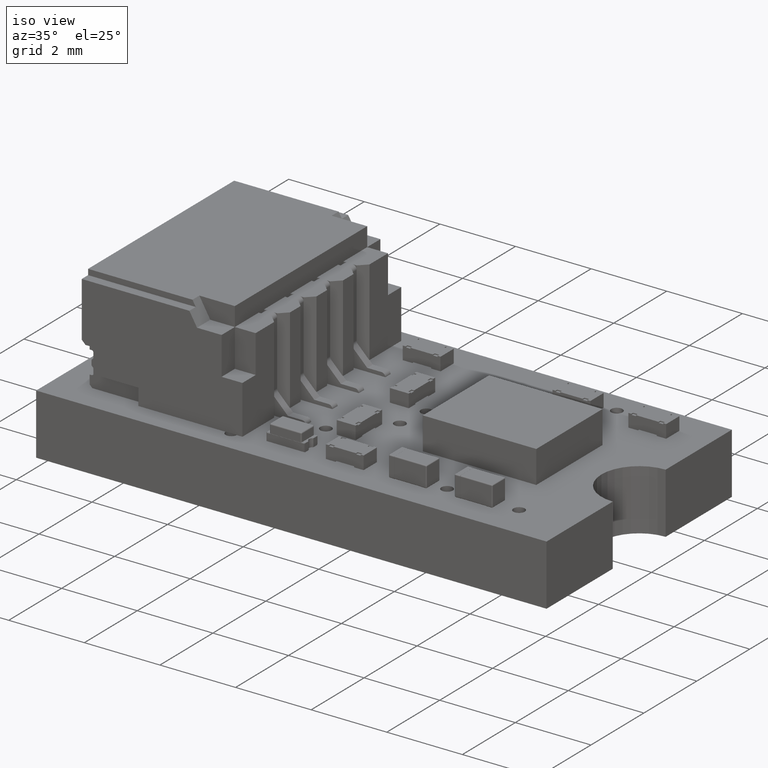
[diagram: clean part render]
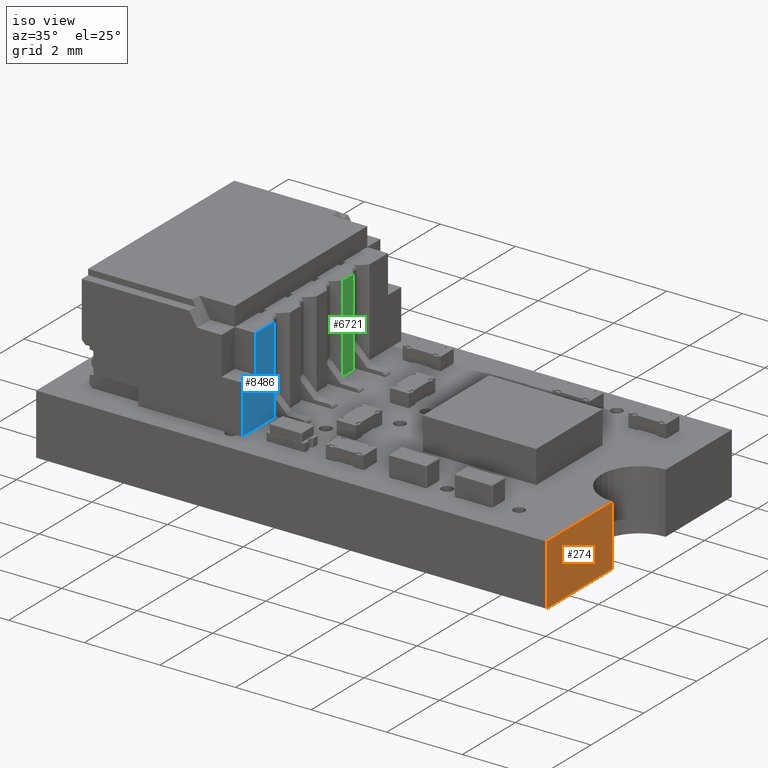
[diagram: same view with three faces highlighted in distinct colors, each labeled with its STEP entity id]
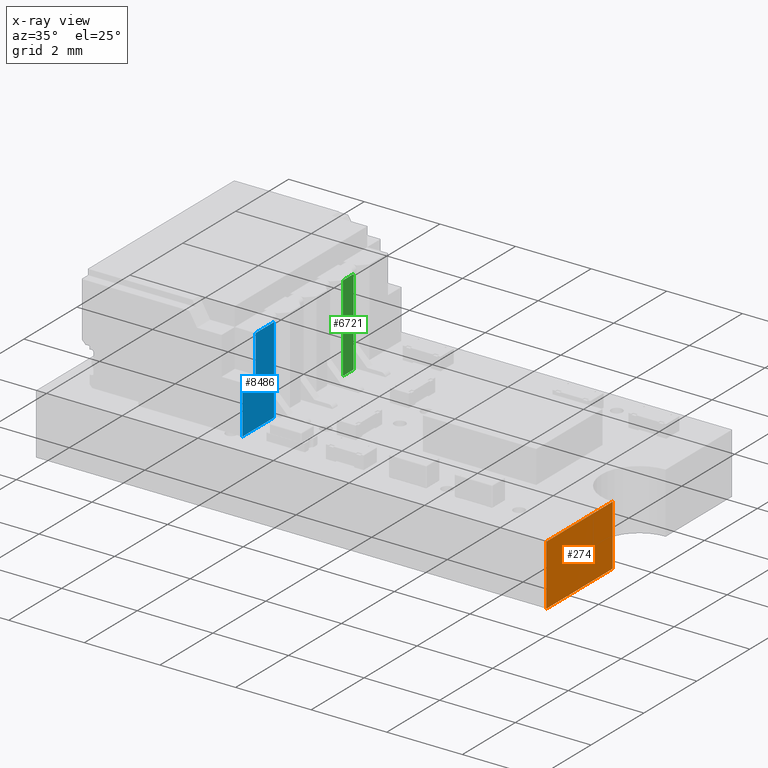
[diagram: x-ray of the same camera — body ghosted, the three highlighted faces saturated]
A machine part, iso view with three faces highlighted in distinct colors.
The next image is the same camera in x-ray (body ghosted, the three faces saturated) — at least one of them is partly hidden behind the body in this view.
Their STEP definitions:

[orange] entity #274 — the highlighted planar face has unit normal (-1, 0, 0).
#218 = VERTEX_POINT('',#219);
#219 = CARTESIAN_POINT('',(13.5,-7.25,0.803));
#225 = EDGE_CURVE('',#226,#218,#228,.T.);
#226 = VERTEX_POINT('',#227);
#227 = CARTESIAN_POINT('',(13.5,-7.25,-0.803));
#228 = LINE('',#229,#230);
#229 = CARTESIAN_POINT('',(13.5,-7.25,-0.803));
#230 = VECTOR('',#231,1.);
#231 = DIRECTION('',(0.,0.,1.));
#274 = ADVANCED_FACE('',(#275),#300,.F.);
#275 = FACE_BOUND('',#276,.F.);
#276 = EDGE_LOOP('',(#277,#278,#286,#294));
#277 = ORIENTED_EDGE('',*,*,#225,.T.);
#278 = ORIENTED_EDGE('',*,*,#279,.T.);
#279 = EDGE_CURVE('',#218,#280,#282,.T.);
#280 = VERTEX_POINT('',#281);
#281 = CARTESIAN_POINT('',(13.5,-4.75,0.803));
#282 = LINE('',#283,#284);
#283 = CARTESIAN_POINT('',(13.5,-7.25,0.803));
#284 = VECTOR('',#285,1.);
#285 = DIRECTION('',(0.,1.,0.));
#286 = ORIENTED_EDGE('',*,*,#287,.F.);
#287 = EDGE_CURVE('',#288,#280,#290,.T.);
#288 = VERTEX_POINT('',#289);
#289 = CARTESIAN_POINT('',(13.5,-4.75,-0.803));
#290 = LINE('',#291,#292);
#291 = CARTESIAN_POINT('',(13.5,-4.75,-0.803));
#292 = VECTOR('',#293,1.);
#293 = DIRECTION('',(0.,0.,1.));
#294 = ORIENTED_EDGE('',*,*,#295,.F.);
#295 = EDGE_CURVE('',#226,#288,#296,.T.);
#296 = LINE('',#297,#298);
#297 = CARTESIAN_POINT('',(13.5,-7.25,-0.803));
#298 = VECTOR('',#299,1.);
#299 = DIRECTION('',(0.,1.,0.));
#300 = PLANE('',#301);
#301 = AXIS2_PLACEMENT_3D('',#302,#303,#304);
#302 = CARTESIAN_POINT('',(13.5,-7.25,-0.803));
#303 = DIRECTION('',(-1.,0.,0.));
#304 = DIRECTION('',(0.,1.,0.));

[blue] entity #8486 — the highlighted planar face has unit normal (-1, -0, -0).
#6379 = VERTEX_POINT('',#6380);
#6380 = CARTESIAN_POINT('',(1.8,0.47,-0.355));
#6386 = EDGE_CURVE('',#6387,#6379,#6389,.T.);
#6387 = VERTEX_POINT('',#6388);
#6388 = CARTESIAN_POINT('',(3.,0.47,-0.355));
#6389 = LINE('',#6390,#6391);
#6390 = CARTESIAN_POINT('',(3.,0.47,-0.355));
#6391 = VECTOR('',#6392,1.);
#6392 = DIRECTION('',(-1.,-1.355252715607E-16,7.105427357601E-15));
#7933 = EDGE_CURVE('',#7934,#7936,#7938,.T.);
#7934 = VERTEX_POINT('',#7935);
#7935 = CARTESIAN_POINT('',(3.,1.755,-0.355));
#7936 = VERTEX_POINT('',#7937);
#7937 = CARTESIAN_POINT('',(2.5,1.755,-0.355));
#7938 = LINE('',#7939,#7940);
#7939 = CARTESIAN_POINT('',(3.,1.755,-0.355));
#7940 = VECTOR('',#7941,1.);
#7941 = DIRECTION('',(-1.,-0.,7.105427357601E-15));
#7964 = EDGE_CURVE('',#7936,#7965,#7967,.T.);
#7965 = VERTEX_POINT('',#7966);
#7966 = CARTESIAN_POINT('',(2.5,2.755,-0.355));
#7967 = LINE('',#7968,#7969);
#7968 = CARTESIAN_POINT('',(2.5,3.255,-0.355));
#7969 = VECTOR('',#7970,1.);
#7970 = DIRECTION('',(2.480848139264E-29,1.,3.491483361109E-15));
#8035 = EDGE_CURVE('',#8036,#7965,#8038,.T.);
#8036 = VERTEX_POINT('',#8037);
#8037 = CARTESIAN_POINT('',(1.8,2.755,-0.355));
#8038 = LINE('',#8039,#8040);
#8039 = CARTESIAN_POINT('',(-4.,2.755,-0.355));
#8040 = VECTOR('',#8041,1.);
#8041 = DIRECTION('',(1.,5.605193857299E-45,-6.982966722219E-15));
#8473 = EDGE_CURVE('',#6387,#7934,#8474,.T.);
#8474 = LINE('',#8475,#8476);
#8475 = CARTESIAN_POINT('',(3.,3.255,-0.355));
#8476 = VECTOR('',#8477,1.);
#8477 = DIRECTION('',(2.480848139264E-29,1.,3.491483361109E-15));
#8486 = ADVANCED_FACE('',(#8487),#8500,.F.);
#8487 = FACE_BOUND('',#8488,.T.);
#8488 = EDGE_LOOP('',(#8489,#8490,#8496,#8497,#8498,#8499));
#8489 = ORIENTED_EDGE('',*,*,#6386,.T.);
#8490 = ORIENTED_EDGE('',*,*,#8491,.T.);
#8491 = EDGE_CURVE('',#6379,#8036,#8492,.T.);
#8492 = LINE('',#8493,#8494);
#8493 = CARTESIAN_POINT('',(1.8,2.755,-0.355));
#8494 = VECTOR('',#8495,1.);
#8495 = DIRECTION('',(2.486182800327E-29,1.,3.491483361109E-15));
#8496 = ORIENTED_EDGE('',*,*,#8035,.T.);
#8497 = ORIENTED_EDGE('',*,*,#7964,.F.);
#8498 = ORIENTED_EDGE('',*,*,#7933,.F.);
#8499 = ORIENTED_EDGE('',*,*,#8473,.F.);
#8500 = PLANE('',#8501);
#8501 = AXIS2_PLACEMENT_3D('',#8502,#8503,#8504);
#8502 = CARTESIAN_POINT('',(3.,3.255,-0.355));
#8503 = DIRECTION('',(7.105427357601E-15,-3.491483361109E-15,1.));
#8504 = DIRECTION('',(1.,0.,-7.105427357601E-15));

[green] entity #6721 — the highlighted planar face has unit normal (-1, -0, -0).
#6505 = VERTEX_POINT('',#6506);
#6506 = CARTESIAN_POINT('',(-1.2,0.47,-0.355));
#6512 = EDGE_CURVE('',#6513,#6505,#6515,.T.);
#6513 = VERTEX_POINT('',#6514);
#6514 = CARTESIAN_POINT('',(-0.8,0.47,-0.355));
#6515 = LINE('',#6516,#6517);
#6516 = CARTESIAN_POINT('',(4.,0.47,-0.355));
#6517 = VECTOR('',#6518,1.);
#6518 = DIRECTION('',(-1.,-1.355252715607E-16,7.105427357601E-15));
#6721 = ADVANCED_FACE('',(#6722),#6747,.F.);
#6722 = FACE_BOUND('',#6723,.T.);
#6723 = EDGE_LOOP('',(#6724,#6725,#6733,#6741));
#6724 = ORIENTED_EDGE('',*,*,#6512,.T.);
#6725 = ORIENTED_EDGE('',*,*,#6726,.T.);
#6726 = EDGE_CURVE('',#6505,#6727,#6729,.T.);
#6727 = VERTEX_POINT('',#6728);
#6728 = CARTESIAN_POINT('',(-1.2,2.755,-0.355));
#6729 = LINE('',#6730,#6731);
#6730 = CARTESIAN_POINT('',(-1.2,2.755,-0.355));
#6731 = VECTOR('',#6732,1.);
#6732 = DIRECTION('',(2.486182800327E-29,1.,3.491483361109E-15));
#6733 = ORIENTED_EDGE('',*,*,#6734,.T.);
#6734 = EDGE_CURVE('',#6727,#6735,#6737,.T.);
#6735 = VERTEX_POINT('',#6736);
#6736 = CARTESIAN_POINT('',(-0.8,2.755,-0.355));
#6737 = LINE('',#6738,#6739);
#6738 = CARTESIAN_POINT('',(-3.,2.755,-0.355));
#6739 = VECTOR('',#6740,1.);
#6740 = DIRECTION('',(1.,5.605193857299E-45,-6.982966722219E-15));
#6741 = ORIENTED_EDGE('',*,*,#6742,.T.);
#6742 = EDGE_CURVE('',#6735,#6513,#6743,.T.);
#6743 = LINE('',#6744,#6745);
#6744 = CARTESIAN_POINT('',(-0.8,3.255,-0.355));
#6745 = VECTOR('',#6746,1.);
#6746 = DIRECTION('',(-2.486182800327E-29,-1.,-3.491483361109E-15));
#6747 = PLANE('',#6748);
#6748 = AXIS2_PLACEMENT_3D('',#6749,#6750,#6751);
#6749 = CARTESIAN_POINT('',(4.,3.255,-0.355));
#6750 = DIRECTION('',(7.105427357601E-15,-3.491483361109E-15,1.));
#6751 = DIRECTION('',(1.,0.,-7.105427357601E-15));